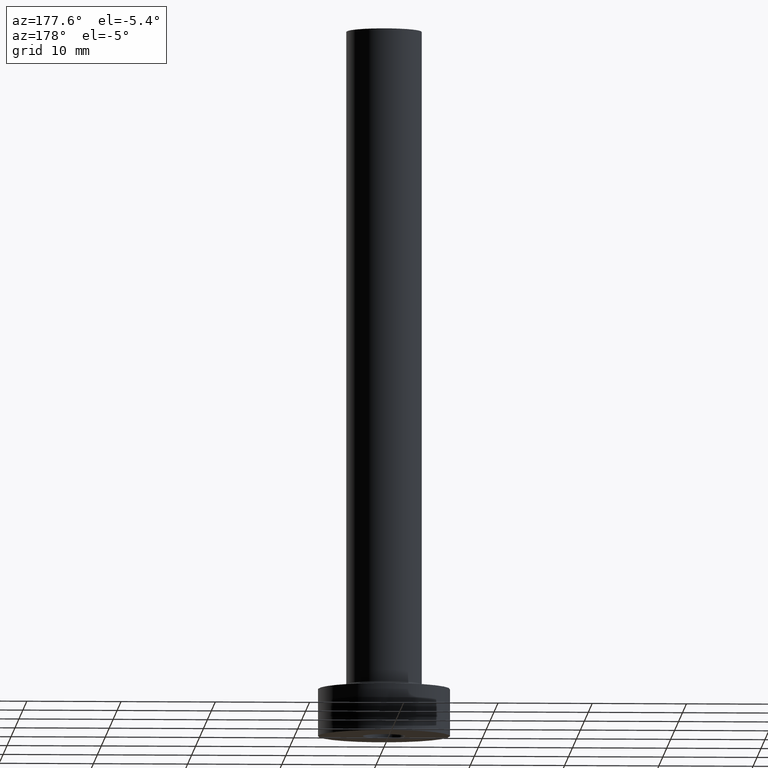
[diagram: clean part render]
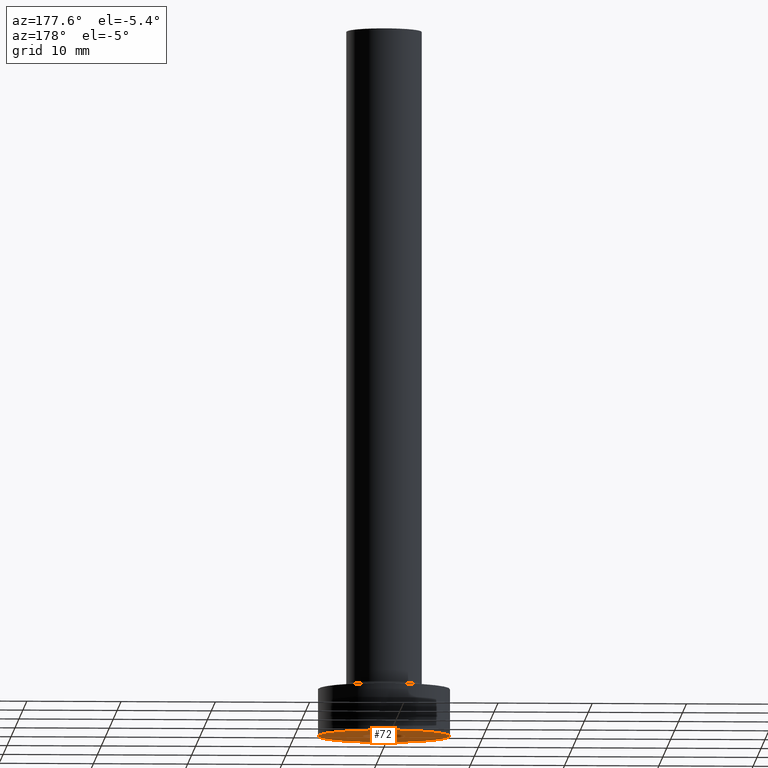
[diagram: same view with one face highlighted and labeled with its STEP entity id]
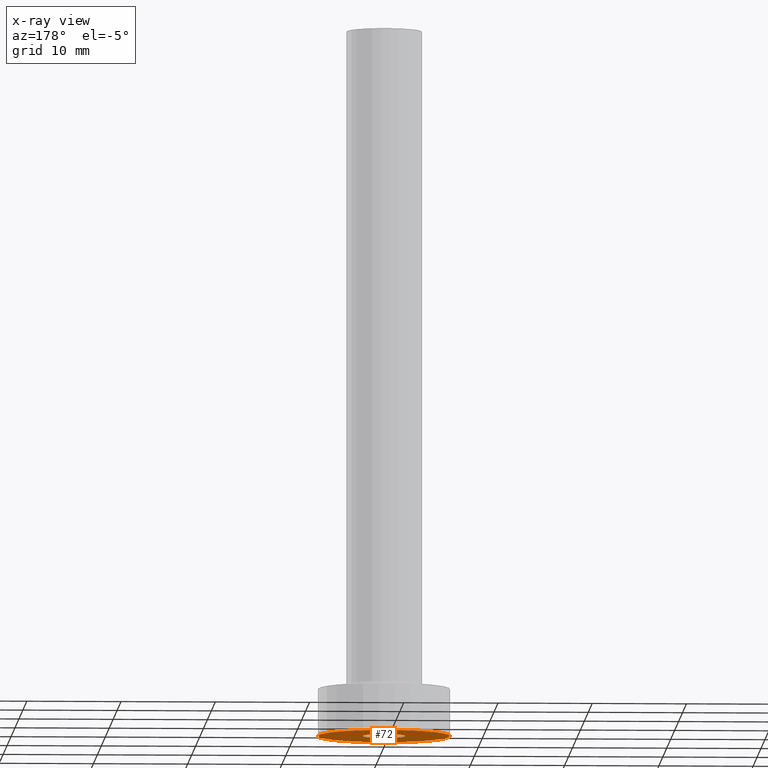
[diagram: x-ray of the same camera — body ghosted, the highlighted face saturated]
A machine part, auxiliary view. The second image highlights one B-rep face of the part: STEP entity #72.
The next image is the same camera in x-ray: the body ghosted, the highlighted face saturated — about 0% of this face is hidden behind the body in this view.
In plain terms, the highlighted planar face has unit normal (0, 0, 1).
Its self-contained STEP definition (entity closure, byte-faithful):
#15 = ORIENTED_EDGE ( 'NONE', *, *, #459, .F. ) ;
#35 = DIRECTION ( 'NONE',  ( 1.000000000000000000, 0.000000000000000000, 0.000000000000000000 ) ) ;
#36 = CARTESIAN_POINT ( 'NONE',  ( 0.000000000000000000, 0.000000000000000000, 0.000000000000000000 ) ) ;
#43 = CARTESIAN_POINT ( 'NONE',  ( 2.250000000000000000, 2.755455298081544285E-16, 0.000000000000000000 ) ) ;
#45 = ORIENTED_EDGE ( 'NONE', *, *, #142, .F. ) ;
#46 = AXIS2_PLACEMENT_3D ( 'NONE', #231, #78, #35 ) ;
#51 = AXIS2_PLACEMENT_3D ( 'NONE', #454, #92, #88 ) ;
#67 = CIRCLE ( 'NONE', #238, 7.000000000000000000 ) ;
#72 = ADVANCED_FACE ( 'NONE', ( #283, #281 ), #317, .F. ) ;
#78 = DIRECTION ( 'NONE',  ( -0.000000000000000000, -0.000000000000000000, -1.000000000000000000 ) ) ;
#88 = DIRECTION ( 'NONE',  ( 1.000000000000000000, 0.000000000000000000, -0.000000000000000000 ) ) ;
#92 = DIRECTION ( 'NONE',  ( 0.000000000000000000, 0.000000000000000000, 1.000000000000000000 ) ) ;
#100 = DIRECTION ( 'NONE',  ( 1.000000000000000000, 0.000000000000000000, 0.000000000000000000 ) ) ;
#102 = EDGE_LOOP ( 'NONE', ( #389, #15 ) ) ;
#116 = CIRCLE ( 'NONE', #46, 2.250000000000000000 ) ;
#124 = EDGE_CURVE ( 'NONE', #392, #201, #67, .T. ) ;
#142 = EDGE_CURVE ( 'NONE', #201, #392, #195, .T. ) ;
#146 = EDGE_LOOP ( 'NONE', ( #45, #451 ) ) ;
#147 = DIRECTION ( 'NONE',  ( 0.000000000000000000, 0.000000000000000000, 1.000000000000000000 ) ) ;
#157 = EDGE_CURVE ( 'NONE', #456, #247, #116, .T. ) ;
#195 = CIRCLE ( 'NONE', #453, 7.000000000000000000 ) ;
#201 = VERTEX_POINT ( 'NONE', #406 ) ;
#203 = AXIS2_PLACEMENT_3D ( 'NONE', #210, #350, #100 ) ;
#210 = CARTESIAN_POINT ( 'NONE',  ( 0.000000000000000000, 0.000000000000000000, 0.000000000000000000 ) ) ;
#231 = CARTESIAN_POINT ( 'NONE',  ( 0.000000000000000000, 0.000000000000000000, 0.000000000000000000 ) ) ;
#238 = AXIS2_PLACEMENT_3D ( 'NONE', #332, #293, #439 ) ;
#247 = VERTEX_POINT ( 'NONE', #43 ) ;
#281 = FACE_OUTER_BOUND ( 'NONE', #146, .T. ) ;
#283 = FACE_BOUND ( 'NONE', #102, .T. ) ;
#293 = DIRECTION ( 'NONE',  ( 0.000000000000000000, 0.000000000000000000, 1.000000000000000000 ) ) ;
#317 = PLANE ( 'NONE',  #51 ) ;
#332 = CARTESIAN_POINT ( 'NONE',  ( 0.000000000000000000, 0.000000000000000000, 0.000000000000000000 ) ) ;
#350 = DIRECTION ( 'NONE',  ( -0.000000000000000000, -0.000000000000000000, -1.000000000000000000 ) ) ;
#351 = CARTESIAN_POINT ( 'NONE',  ( 7.000000000000000000, 8.572527594031473190E-16, 0.000000000000000000 ) ) ;
#360 = DIRECTION ( 'NONE',  ( 1.000000000000000000, 0.000000000000000000, 0.000000000000000000 ) ) ;
#389 = ORIENTED_EDGE ( 'NONE', *, *, #157, .F. ) ;
#392 = VERTEX_POINT ( 'NONE', #351 ) ;
#406 = CARTESIAN_POINT ( 'NONE',  ( -7.000000000000000000, 0.000000000000000000, 0.000000000000000000 ) ) ;
#415 = CIRCLE ( 'NONE', #203, 2.250000000000000000 ) ;
#439 = DIRECTION ( 'NONE',  ( 1.000000000000000000, 0.000000000000000000, 0.000000000000000000 ) ) ;
#451 = ORIENTED_EDGE ( 'NONE', *, *, #124, .F. ) ;
#453 = AXIS2_PLACEMENT_3D ( 'NONE', #36, #147, #360 ) ;
#454 = CARTESIAN_POINT ( 'NONE',  ( 0.000000000000000000, 0.000000000000000000, 0.000000000000000000 ) ) ;
#456 = VERTEX_POINT ( 'NONE', #457 ) ;
#457 = CARTESIAN_POINT ( 'NONE',  ( -2.250000000000000000, 0.000000000000000000, 0.000000000000000000 ) ) ;
#459 = EDGE_CURVE ( 'NONE', #247, #456, #415, .T. ) ;